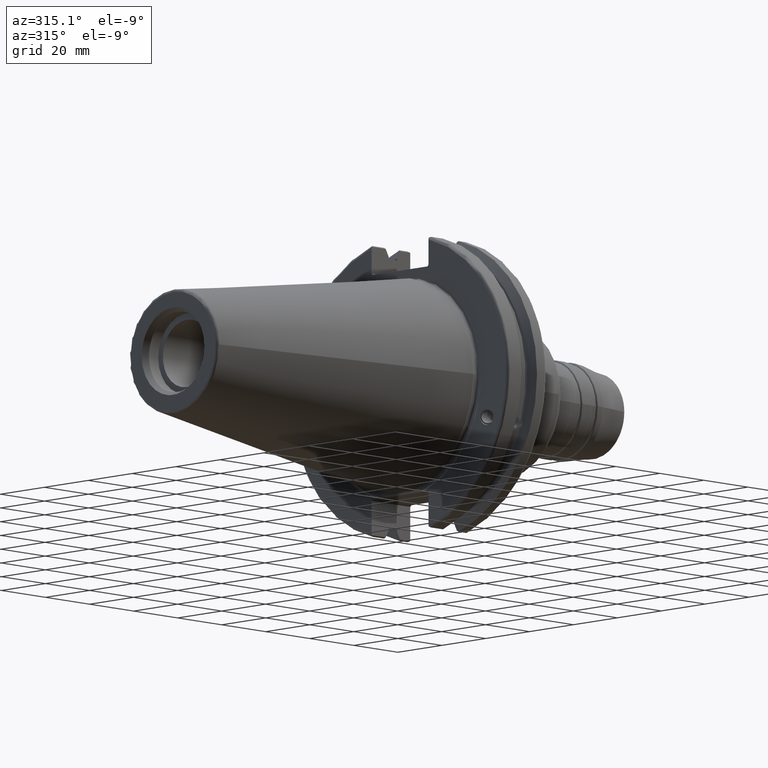
[diagram: clean part render]
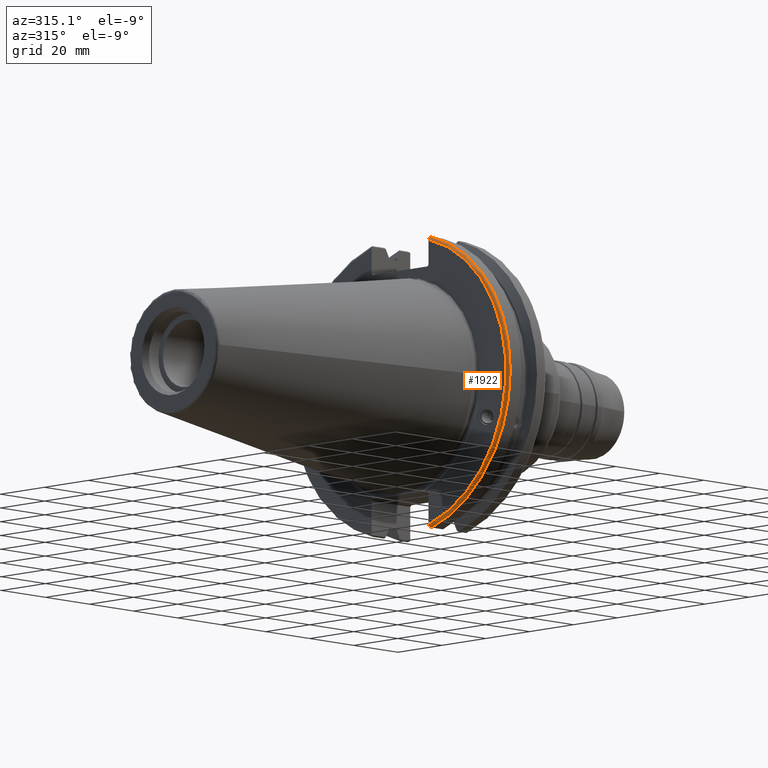
[diagram: same view with one face highlighted and labeled with its STEP entity id]
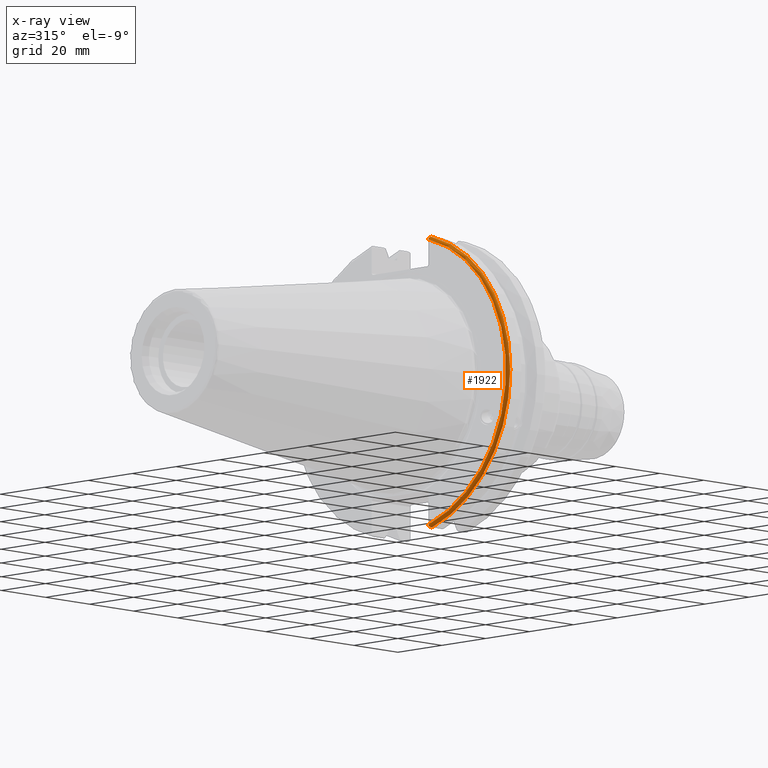
[diagram: x-ray of the same camera — body ghosted, the highlighted face saturated]
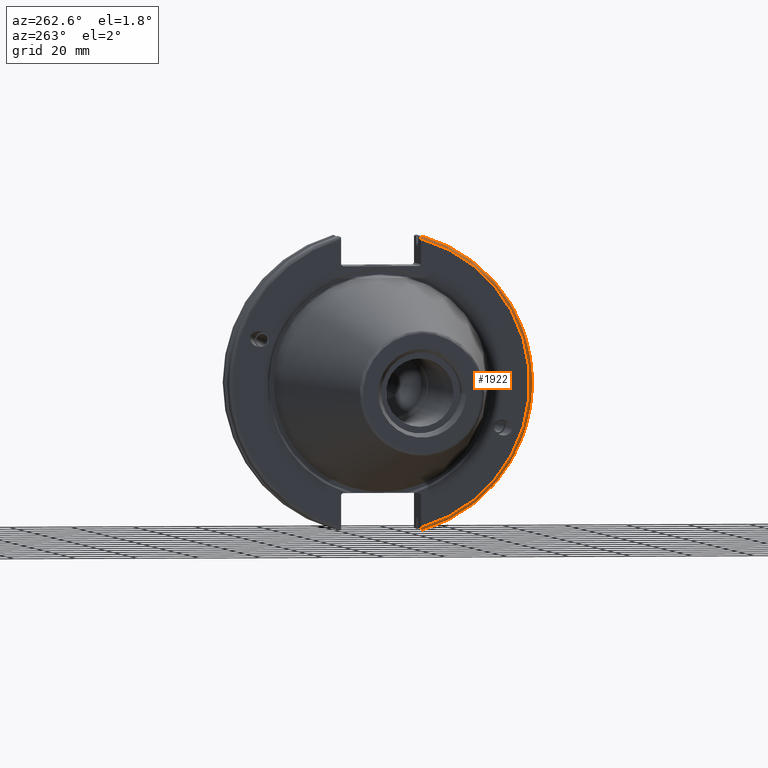
[diagram: same view with one face highlighted and labeled with its STEP entity id]
A machine part, auxiliary view. The second image highlights one B-rep face of the part: STEP entity #1922.
The next image is the same camera in x-ray: the body ghosted, the highlighted face saturated — about 0% of this face is hidden behind the body in this view.
A second angle (auxiliary view) of the same face is appended — the face is thin or edge-on in the first view.
In plain terms, the highlighted toroidal blend (fillet) surface has major radius 48.2125 mm and minor (blend) radius 1 mm.
Its self-contained STEP definition (entity closure, byte-faithful):
#68=B_SPLINE_CURVE_WITH_KNOTS('',3,(#3665,#3666,#3667,#3668,#3669,#3670),
 .UNSPECIFIED.,.F.,.F.,(4,2,4),(0.0976892167532866,0.112000071948292,0.150881870548587),
 .UNSPECIFIED.);
#69=B_SPLINE_CURVE_WITH_KNOTS('',3,(#3692,#3693,#3694,#3695,#3696,#3697),
 .UNSPECIFIED.,.F.,.F.,(4,2,4),(0.452859340315922,0.491741138916218,0.506051994111223),
 .UNSPECIFIED.);
#70=B_SPLINE_CURVE_WITH_KNOTS('',3,(#3703,#3704,#3705,#3706,#3707,#3708,
#3709,#3710),.UNSPECIFIED.,.F.,.F.,(4,2,2,4),(-0.104075769062722,-0.0730268503455485,
-0.034363987365627,0.),.UNSPECIFIED.);
#71=B_SPLINE_CURVE_WITH_KNOTS('',3,(#3713,#3714,#3715,#3716,#3717,#3718,
#3719,#3720),.UNSPECIFIED.,.F.,.F.,(4,2,2,4),(0.,0.0343639873656262,0.073026850345548,
0.104075769062722),.UNSPECIFIED.);
#456=FACE_OUTER_BOUND('',#576,.T.);
#576=EDGE_LOOP('',(#1633,#1634,#1635,#1636,#1637,#1638));
#726=CIRCLE('',#2158,49.2125);
#727=CIRCLE('',#2159,48.2125);
#906=VERTEX_POINT('',#3662);
#907=VERTEX_POINT('',#3664);
#913=VERTEX_POINT('',#3689);
#914=VERTEX_POINT('',#3691);
#916=VERTEX_POINT('',#3702);
#917=VERTEX_POINT('',#3711);
#1161=EDGE_CURVE('',#907,#906,#68,.T.);
#1171=EDGE_CURVE('',#914,#913,#69,.T.);
#1174=EDGE_CURVE('',#913,#916,#70,.T.);
#1175=EDGE_CURVE('',#916,#917,#726,.T.);
#1176=EDGE_CURVE('',#917,#907,#71,.T.);
#1177=EDGE_CURVE('',#906,#914,#727,.T.);
#1633=ORIENTED_EDGE('',*,*,#1174,.T.);
#1634=ORIENTED_EDGE('',*,*,#1175,.T.);
#1635=ORIENTED_EDGE('',*,*,#1176,.T.);
#1636=ORIENTED_EDGE('',*,*,#1161,.T.);
#1637=ORIENTED_EDGE('',*,*,#1177,.T.);
#1638=ORIENTED_EDGE('',*,*,#1171,.T.);
#1852=TOROIDAL_SURFACE('',#2157,48.2125,1.);
#1922=ADVANCED_FACE('',(#456),#1852,.T.);
#2157=AXIS2_PLACEMENT_3D('',#3701,#2641,#2642);
#2158=AXIS2_PLACEMENT_3D('',#3712,#2643,#2644);
#2159=AXIS2_PLACEMENT_3D('',#3721,#2645,#2646);
#2641=DIRECTION('center_axis',(1.,0.,0.));
#2642=DIRECTION('ref_axis',(0.,0.,-1.));
#2643=DIRECTION('center_axis',(-1.,0.,0.));
#2644=DIRECTION('ref_axis',(0.,-1.,1.60812264967664E-16));
#2645=DIRECTION('center_axis',(1.,0.,0.));
#2646=DIRECTION('ref_axis',(0.,-1.,1.60812264967664E-16));
#3662=CARTESIAN_POINT('',(1.5,-12.95,46.4407434937254));
#3664=CARTESIAN_POINT('',(1.64449794294344,-12.95,46.9780755322918));
#3665=CARTESIAN_POINT('Ctrl Pts',(1.64449794294344,-12.95,46.9780755322918));
#3666=CARTESIAN_POINT('Ctrl Pts',(1.61841556483839,-12.95,46.9333752207329));
#3667=CARTESIAN_POINT('Ctrl Pts',(1.59615672912336,-12.95,46.887363294568));
#3668=CARTESIAN_POINT('Ctrl Pts',(1.52953530071253,-12.95,46.7230464903732));
#3669=CARTESIAN_POINT('Ctrl Pts',(1.5,-12.95,46.5703494890597));
#3670=CARTESIAN_POINT('Ctrl Pts',(1.5,-12.95,46.4407434937254));
#3689=CARTESIAN_POINT('',(1.64449794294343,-12.95,-46.9780755322917));
#3691=CARTESIAN_POINT('',(1.5,-12.95,-46.4407434937254));
#3692=CARTESIAN_POINT('Ctrl Pts',(1.5,-12.95,-46.4407434937254));
#3693=CARTESIAN_POINT('Ctrl Pts',(1.5,-12.95,-46.5703494890597));
#3694=CARTESIAN_POINT('Ctrl Pts',(1.52953530071253,-12.95,-46.7230464903732));
#3695=CARTESIAN_POINT('Ctrl Pts',(1.59615672912336,-12.95,-46.887363294568));
#3696=CARTESIAN_POINT('Ctrl Pts',(1.61841556483838,-12.95,-46.9333752207329));
#3697=CARTESIAN_POINT('Ctrl Pts',(1.64449794294343,-12.95,-46.9780755322917));
#3701=CARTESIAN_POINT('Origin',(2.5,0.,0.));
#3702=CARTESIAN_POINT('',(2.5,-13.4317035994433,-47.3440544806494));
#3703=CARTESIAN_POINT('Ctrl Pts',(1.64449794294343,-12.95,-46.9780755322917));
#3704=CARTESIAN_POINT('Ctrl Pts',(1.69285032278753,-13.0300321736484,-47.0388807469102));
#3705=CARTESIAN_POINT('Ctrl Pts',(1.75735971798504,-13.1083611826073,-47.0983919657547));
#3706=CARTESIAN_POINT('Ctrl Pts',(1.91007512107923,-13.2478194810696,-47.2043467509586));
#3707=CARTESIAN_POINT('Ctrl Pts',(2.03138116490964,-13.3242014686233,-47.2623787015413));
#3708=CARTESIAN_POINT('Ctrl Pts',(2.25161103245834,-13.4067722493645,-47.3251126473446));
#3709=CARTESIAN_POINT('Ctrl Pts',(2.38545337544791,-13.4317035994434,-47.3440544806494));
#3710=CARTESIAN_POINT('Ctrl Pts',(2.5,-13.4317035994434,-47.3440544806494));
#3711=CARTESIAN_POINT('',(2.5,-13.4317035994433,47.3440544806494));
#3712=CARTESIAN_POINT('Origin',(2.5,0.,0.));
#3713=CARTESIAN_POINT('Ctrl Pts',(2.5,-13.4317035994433,47.3440544806494));
#3714=CARTESIAN_POINT('Ctrl Pts',(2.38545337544791,-13.4317035994433,47.3440544806494));
#3715=CARTESIAN_POINT('Ctrl Pts',(2.25161103245835,-13.4067722493645,47.3251126473446));
#3716=CARTESIAN_POINT('Ctrl Pts',(2.03138116490965,-13.3242014686233,47.2623787015413));
#3717=CARTESIAN_POINT('Ctrl Pts',(1.91007512107924,-13.2478194810695,47.2043467509586));
#3718=CARTESIAN_POINT('Ctrl Pts',(1.75735971798504,-13.1083611826073,47.0983919657547));
#3719=CARTESIAN_POINT('Ctrl Pts',(1.69285032278754,-13.0300321736484,47.0388807469102));
#3720=CARTESIAN_POINT('Ctrl Pts',(1.64449794294344,-12.95,46.9780755322918));
#3721=CARTESIAN_POINT('Origin',(1.5,0.,0.));